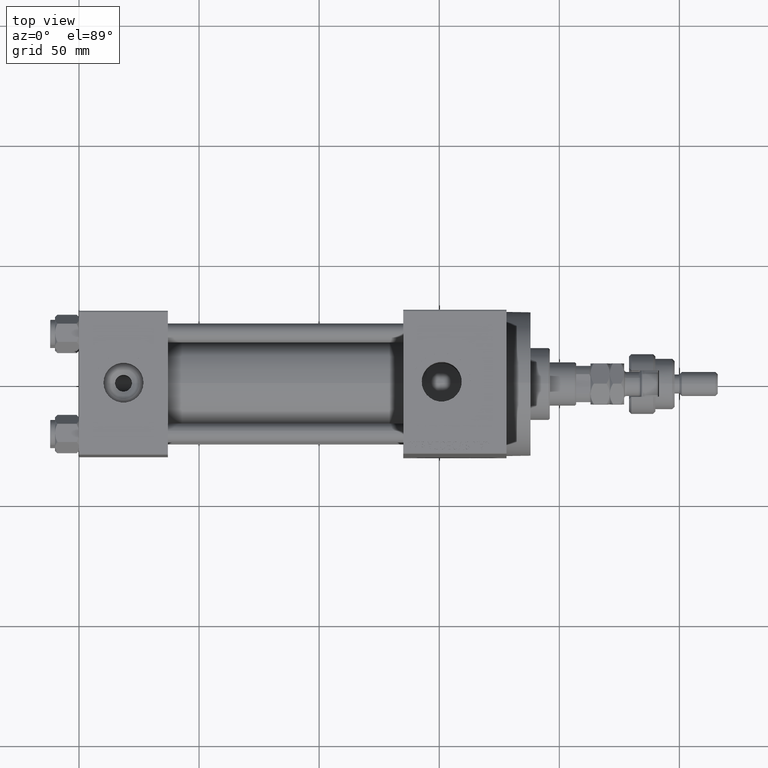
[diagram: clean part render]
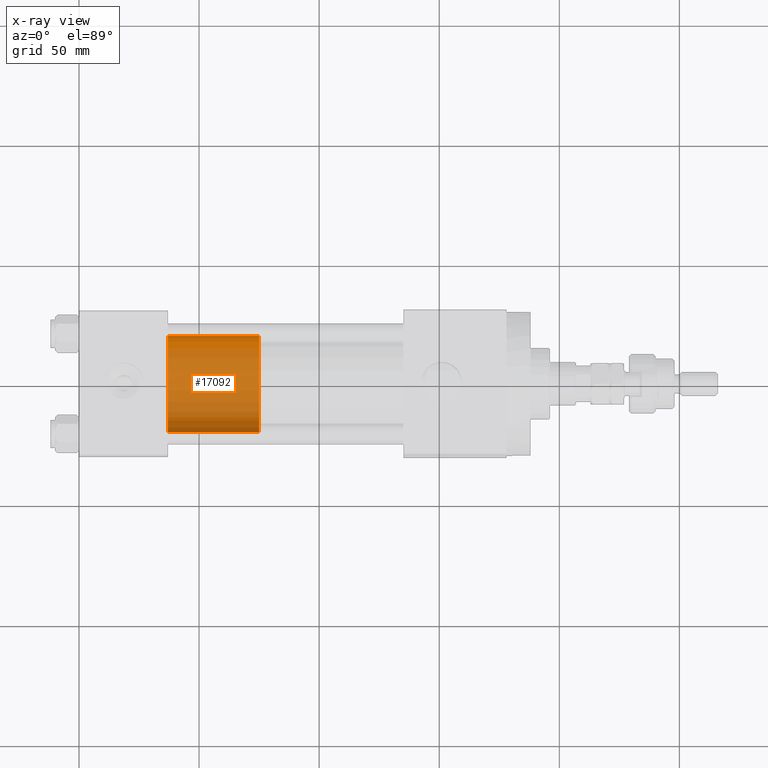
[diagram: x-ray — body ghosted, one internal face saturated and labeled with its STEP entity id]
A machine part, top view, then the same camera in x-ray: the body is ghosted and one INTERNAL B-rep face — a face not visible from any outside direction — is saturated and labeled: STEP entity #17092.
In plain terms, the highlighted cylindrical surface (partial cylindrical patch) has radius 20 mm, axis along (-1, 0, 0).
Its self-contained STEP definition (entity closure, byte-faithful):
#241 = CARTESIAN_POINT ( 'NONE',  ( 20.00000000000000000, 2.449293598294706513E-15, 0.000000000000000000 ) ) ;
#502 = CARTESIAN_POINT ( 'NONE',  ( 20.00000000000000000, 2.449293598294706513E-15, 38.00000000000000000 ) ) ;
#1389 = EDGE_CURVE ( 'NONE', #14872, #15934, #16477, .T. ) ;
#1778 = CARTESIAN_POINT ( 'NONE',  ( -20.00000000000000000, 0.000000000000000000, 38.00000000000000000 ) ) ;
#1932 = EDGE_LOOP ( 'NONE', ( #31738, #7777, #20934, #37783 ) ) ;
#2419 = EDGE_CURVE ( 'NONE', #25853, #14872, #19234, .T. ) ;
#6726 = DIRECTION ( 'NONE',  ( -1.000000000000000000, 0.000000000000000000, 0.000000000000000000 ) ) ;
#7777 = ORIENTED_EDGE ( 'NONE', *, *, #40399, .T. ) ;
#9538 = DIRECTION ( 'NONE',  ( 0.000000000000000000, 0.000000000000000000, 1.000000000000000000 ) ) ;
#10692 = CARTESIAN_POINT ( 'NONE',  ( -20.00000000000000000, 0.000000000000000000, 38.00000000000000000 ) ) ;
#11049 = CIRCLE ( 'NONE', #23945, 20.00000000000000000 ) ;
#11225 = VECTOR ( 'NONE', #34913, 1000.000000000000000 ) ;
#12206 = DIRECTION ( 'NONE',  ( 1.000000000000000000, 0.000000000000000000, 0.000000000000000000 ) ) ;
#14872 = VERTEX_POINT ( 'NONE', #10692 ) ;
#15934 = VERTEX_POINT ( 'NONE', #48531 ) ;
#16477 = LINE ( 'NONE', #1778, #36168 ) ;
#17092 = ADVANCED_FACE ( 'NONE', ( #41377 ), #26199, .T. ) ;
#19234 = CIRCLE ( 'NONE', #32152, 20.00000000000000000 ) ;
#19503 = LINE ( 'NONE', #502, #11225 ) ;
#20033 = DIRECTION ( 'NONE',  ( 0.000000000000000000, 0.000000000000000000, 1.000000000000000000 ) ) ;
#20934 = ORIENTED_EDGE ( 'NONE', *, *, #35139, .T. ) ;
#23945 = AXIS2_PLACEMENT_3D ( 'NONE', #44192, #9538, #47998 ) ;
#25853 = VERTEX_POINT ( 'NONE', #26664 ) ;
#26199 = CYLINDRICAL_SURFACE ( 'NONE', #34165, 20.00000000000000000 ) ;
#26664 = CARTESIAN_POINT ( 'NONE',  ( 20.00000000000000000, 2.449293598294706513E-15, 38.00000000000000000 ) ) ;
#27453 = VERTEX_POINT ( 'NONE', #241 ) ;
#28838 = DIRECTION ( 'NONE',  ( -0.000000000000000000, -0.000000000000000000, -1.000000000000000000 ) ) ;
#31738 = ORIENTED_EDGE ( 'NONE', *, *, #2419, .F. ) ;
#32152 = AXIS2_PLACEMENT_3D ( 'NONE', #35710, #20033, #12206 ) ;
#34165 = AXIS2_PLACEMENT_3D ( 'NONE', #49713, #37825, #6726 ) ;
#34913 = DIRECTION ( 'NONE',  ( -0.000000000000000000, -0.000000000000000000, -1.000000000000000000 ) ) ;
#35139 = EDGE_CURVE ( 'NONE', #27453, #15934, #11049, .T. ) ;
#35710 = CARTESIAN_POINT ( 'NONE',  ( 0.000000000000000000, 0.000000000000000000, 38.00000000000000000 ) ) ;
#36168 = VECTOR ( 'NONE', #28838, 1000.000000000000000 ) ;
#37783 = ORIENTED_EDGE ( 'NONE', *, *, #1389, .F. ) ;
#37825 = DIRECTION ( 'NONE',  ( -0.000000000000000000, -0.000000000000000000, -1.000000000000000000 ) ) ;
#40399 = EDGE_CURVE ( 'NONE', #25853, #27453, #19503, .T. ) ;
#41377 = FACE_OUTER_BOUND ( 'NONE', #1932, .T. ) ;
#44192 = CARTESIAN_POINT ( 'NONE',  ( 0.000000000000000000, 0.000000000000000000, 0.000000000000000000 ) ) ;
#47998 = DIRECTION ( 'NONE',  ( 1.000000000000000000, 0.000000000000000000, 0.000000000000000000 ) ) ;
#48531 = CARTESIAN_POINT ( 'NONE',  ( -20.00000000000000000, 0.000000000000000000, 0.000000000000000000 ) ) ;
#49713 = CARTESIAN_POINT ( 'NONE',  ( 0.000000000000000000, 0.000000000000000000, 38.00000000000000000 ) ) ;